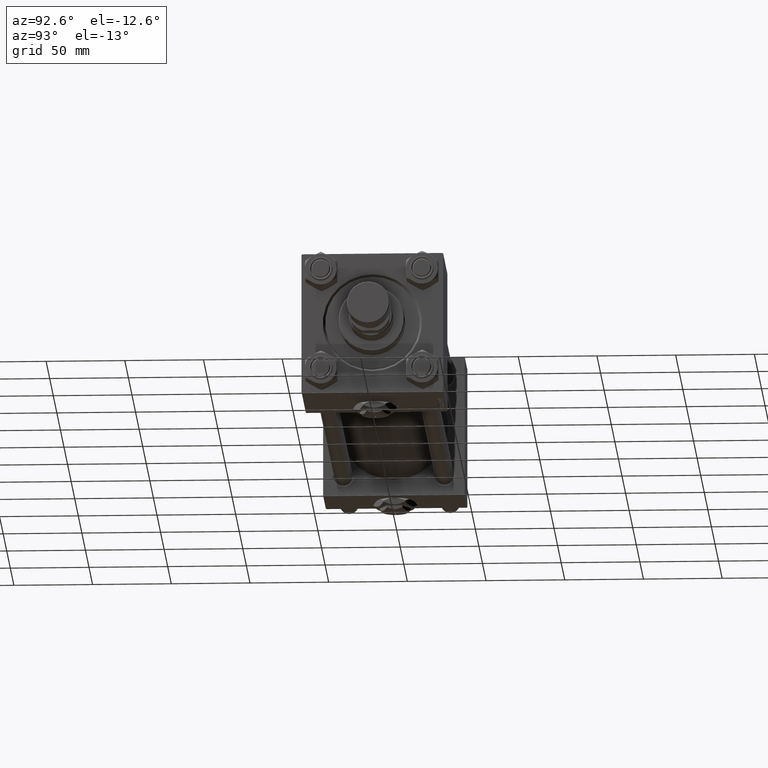
[diagram: clean part render]
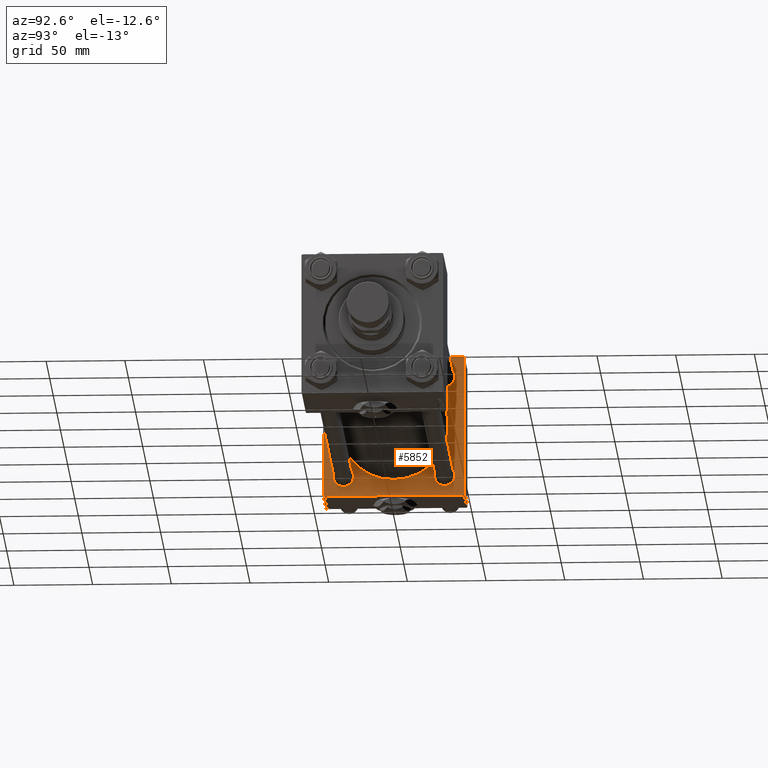
[diagram: same view with one face highlighted and labeled with its STEP entity id]
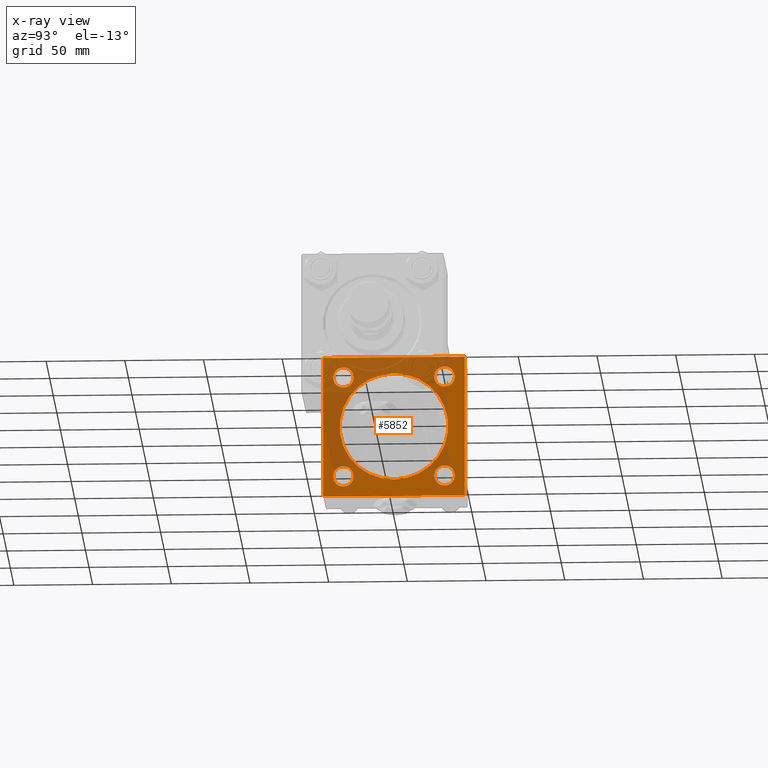
[diagram: x-ray of the same camera — body ghosted, the highlighted face saturated]
A machine part, auxiliary view. The second image highlights one B-rep face of the part: STEP entity #5852.
The next image is the same camera in x-ray: the body ghosted, the highlighted face saturated — about 48% of this face is hidden behind the body in this view.
In plain terms, the highlighted planar face has unit normal (-1, 0, 0).
Its self-contained STEP definition (entity closure, byte-faithful):
#509 = VERTEX_POINT ( 'NONE', #14607 ) ;
#613 = ORIENTED_EDGE ( 'NONE', *, *, #36915, .T. ) ;
#1007 = LINE ( 'NONE', #36975, #21688 ) ;
#1140 = EDGE_CURVE ( 'NONE', #42659, #11289, #39067, .T. ) ;
#1174 = DIRECTION ( 'NONE',  ( -1.000000000000000000, 0.000000000000000000, -0.000000000000000000 ) ) ;
#2552 = AXIS2_PLACEMENT_3D ( 'NONE', #6304, #43576, #35633 ) ;
#2591 = DIRECTION ( 'NONE',  ( -0.000000000000000000, 0.000000000000000000, 1.000000000000000000 ) ) ;
#2696 = LINE ( 'NONE', #23060, #42411 ) ;
#2720 = CIRCLE ( 'NONE', #45776, 6.499999999999950262 ) ;
#3646 = DIRECTION ( 'NONE',  ( 1.000000000000000000, -0.000000000000000000, 0.000000000000000000 ) ) ;
#3846 = ORIENTED_EDGE ( 'NONE', *, *, #24322, .T. ) ;
#3848 = ORIENTED_EDGE ( 'NONE', *, *, #14272, .T. ) ;
#4080 = EDGE_LOOP ( 'NONE', ( #46389, #52222, #13908, #3846, #613, #14825, #33710, #47605 ) ) ;
#5096 = DIRECTION ( 'NONE',  ( -1.000000000000000000, 0.000000000000000000, -0.000000000000000000 ) ) ;
#5213 = LINE ( 'NONE', #21094, #47680 ) ;
#5630 = CARTESIAN_POINT ( 'NONE',  ( 37.00000000000000000, -44.49999999999995737, -45.00000000000000000 ) ) ;
#5852 = ADVANCED_FACE ( 'NONE', ( #34337, #35370, #14747, #51268, #50734, #38793 ), #11039, .F. ) ;
#5905 = DIRECTION ( 'NONE',  ( 1.000000000000000000, -0.000000000000000000, 0.000000000000000000 ) ) ;
#6041 = ORIENTED_EDGE ( 'NONE', *, *, #31951, .T. ) ;
#6304 = CARTESIAN_POINT ( 'NONE',  ( 37.00000000000000000, -32.14999999999997726, 32.15000000000001279 ) ) ;
#6929 = EDGE_CURVE ( 'NONE', #47904, #33044, #38370, .T. ) ;
#7634 = CIRCLE ( 'NONE', #31274, 6.499999999999950262 ) ;
#7756 = EDGE_CURVE ( 'NONE', #8079, #45257, #5213, .T. ) ;
#7876 = VECTOR ( 'NONE', #22701, 1000.000000000000114 ) ;
#8079 = VERTEX_POINT ( 'NONE', #18097 ) ;
#9187 = LINE ( 'NONE', #41444, #50937 ) ;
#9503 = EDGE_CURVE ( 'NONE', #27950, #509, #10692, .T. ) ;
#9724 = EDGE_LOOP ( 'NONE', ( #44734, #52076 ) ) ;
#10620 = AXIS2_PLACEMENT_3D ( 'NONE', #16520, #16770, #32901 ) ;
#10692 = CIRCLE ( 'NONE', #40245, 6.500000000000061284 ) ;
#11011 = DIRECTION ( 'NONE',  ( 0.000000000000000000, 0.7071067811865474617, -0.7071067811865474617 ) ) ;
#11039 = PLANE ( 'NONE',  #42553 ) ;
#11289 = VERTEX_POINT ( 'NONE', #20212 ) ;
#11483 = CIRCLE ( 'NONE', #18250, 34.49999999999999289 ) ;
#11760 = CARTESIAN_POINT ( 'NONE',  ( 37.00000000000000711, 0.000000000000000000, 0.000000000000000000 ) ) ;
#11797 = VERTEX_POINT ( 'NONE', #41216 ) ;
#12240 = CARTESIAN_POINT ( 'NONE',  ( 37.00000000000000000, 44.49999999999998579, -44.99999999999998579 ) ) ;
#12491 = VERTEX_POINT ( 'NONE', #50553 ) ;
#13730 = EDGE_CURVE ( 'NONE', #509, #27950, #36255, .T. ) ;
#13908 = ORIENTED_EDGE ( 'NONE', *, *, #52029, .F. ) ;
#14185 = EDGE_LOOP ( 'NONE', ( #3848, #19636 ) ) ;
#14272 = EDGE_CURVE ( 'NONE', #38202, #16262, #25350, .T. ) ;
#14607 = CARTESIAN_POINT ( 'NONE',  ( 37.00000000000000000, -32.14999999999997726, -38.65000000000007674 ) ) ;
#14747 = FACE_BOUND ( 'NONE', #14185, .T. ) ;
#14825 = ORIENTED_EDGE ( 'NONE', *, *, #27603, .T. ) ;
#15292 = LINE ( 'NONE', #31437, #29894 ) ;
#15364 = EDGE_CURVE ( 'NONE', #46944, #38961, #7634, .T. ) ;
#15580 = AXIS2_PLACEMENT_3D ( 'NONE', #30307, #22389, #23168 ) ;
#15592 = ORIENTED_EDGE ( 'NONE', *, *, #19299, .F. ) ;
#15835 = EDGE_LOOP ( 'NONE', ( #15592, #30518 ) ) ;
#16262 = VERTEX_POINT ( 'NONE', #17519 ) ;
#16341 = AXIS2_PLACEMENT_3D ( 'NONE', #32905, #1174, #52054 ) ;
#16520 = CARTESIAN_POINT ( 'NONE',  ( 37.00000000000000000, 32.14999999999999147, 32.15000000000000568 ) ) ;
#16770 = DIRECTION ( 'NONE',  ( -1.000000000000000000, 0.000000000000000000, -0.000000000000000000 ) ) ;
#17519 = CARTESIAN_POINT ( 'NONE',  ( 37.00000000000000000, -32.14999999999997726, 38.65000000000007674 ) ) ;
#17911 = DIRECTION ( 'NONE',  ( 0.000000000000000000, -1.000000000000000000, -1.541976423090495633E-16 ) ) ;
#18097 = CARTESIAN_POINT ( 'NONE',  ( 37.00000000000000000, -45.00000000000000711, 44.49999999999997158 ) ) ;
#18250 = AXIS2_PLACEMENT_3D ( 'NONE', #24017, #3646, #31940 ) ;
#19299 = EDGE_CURVE ( 'NONE', #42051, #11797, #27077, .T. ) ;
#19636 = ORIENTED_EDGE ( 'NONE', *, *, #47309, .T. ) ;
#20047 = CARTESIAN_POINT ( 'NONE',  ( 37.00000000000000000, 32.14999999999999147, 32.15000000000000568 ) ) ;
#20212 = CARTESIAN_POINT ( 'NONE',  ( 37.00000000000000000, 44.99999999999998579, -44.49999999999995737 ) ) ;
#20397 = CARTESIAN_POINT ( 'NONE',  ( 37.00000000000000000, -32.14999999999997726, -25.64999999999994884 ) ) ;
#20685 = DIRECTION ( 'NONE',  ( 0.000000000000000000, 0.000000000000000000, 1.000000000000000000 ) ) ;
#21094 = CARTESIAN_POINT ( 'NONE',  ( 37.00000000000000000, -45.00000000000000711, 45.00000000000000000 ) ) ;
#21237 = DIRECTION ( 'NONE',  ( 0.000000000000000000, 0.000000000000000000, 1.000000000000000000 ) ) ;
#21265 = EDGE_CURVE ( 'NONE', #45257, #27664, #45018, .T. ) ;
#21688 = VECTOR ( 'NONE', #40664, 1000.000000000000000 ) ;
#22389 = DIRECTION ( 'NONE',  ( -1.000000000000000000, 0.000000000000000000, -0.000000000000000000 ) ) ;
#22701 = DIRECTION ( 'NONE',  ( -0.000000000000000000, 0.7071067811865474617, 0.7071067811865474617 ) ) ;
#23029 = CARTESIAN_POINT ( 'NONE',  ( 37.00000000000000000, 32.14999999999999147, 38.64999999999995595 ) ) ;
#23060 = CARTESIAN_POINT ( 'NONE',  ( 37.00000000000000000, 44.49999999999998579, 45.00000000000001421 ) ) ;
#23168 = DIRECTION ( 'NONE',  ( 0.000000000000000000, 0.000000000000000000, 1.000000000000000000 ) ) ;
#24017 = CARTESIAN_POINT ( 'NONE',  ( 37.00000000000000711, 0.000000000000000000, 0.000000000000000000 ) ) ;
#24019 = DIRECTION ( 'NONE',  ( -1.000000000000000000, 0.000000000000000000, -0.000000000000000000 ) ) ;
#24322 = EDGE_CURVE ( 'NONE', #46140, #50954, #2696, .T. ) ;
#24555 = AXIS2_PLACEMENT_3D ( 'NONE', #11760, #5905, #49574 ) ;
#24928 = DIRECTION ( 'NONE',  ( 0.000000000000000000, 0.000000000000000000, 1.000000000000000000 ) ) ;
#25350 = CIRCLE ( 'NONE', #2552, 6.500000000000061284 ) ;
#26392 = DIRECTION ( 'NONE',  ( -1.000000000000000000, 0.000000000000000000, -0.000000000000000000 ) ) ;
#26677 = CIRCLE ( 'NONE', #10620, 6.499999999999950262 ) ;
#27077 = CIRCLE ( 'NONE', #24555, 34.49999999999999289 ) ;
#27603 = EDGE_CURVE ( 'NONE', #12491, #8079, #28128, .T. ) ;
#27664 = VERTEX_POINT ( 'NONE', #5630 ) ;
#27950 = VERTEX_POINT ( 'NONE', #20397 ) ;
#28128 = LINE ( 'NONE', #40799, #35797 ) ;
#29894 = VECTOR ( 'NONE', #32478, 1000.000000000000000 ) ;
#30307 = CARTESIAN_POINT ( 'NONE',  ( 37.00000000000000000, 32.14999999999999147, -32.15000000000000568 ) ) ;
#30518 = ORIENTED_EDGE ( 'NONE', *, *, #32860, .F. ) ;
#30621 = ORIENTED_EDGE ( 'NONE', *, *, #9503, .T. ) ;
#30720 = CARTESIAN_POINT ( 'NONE',  ( 37.00000000000000711, 0.000000000000000000, 34.49999999999999289 ) ) ;
#31144 = CARTESIAN_POINT ( 'NONE',  ( 37.00000000000000000, 0.000000000000000000, 0.000000000000000000 ) ) ;
#31180 = EDGE_LOOP ( 'NONE', ( #6041, #44243 ) ) ;
#31274 = AXIS2_PLACEMENT_3D ( 'NONE', #20047, #24019, #36162 ) ;
#31437 = CARTESIAN_POINT ( 'NONE',  ( 37.00000000000000000, 44.99999999999998579, 45.00000000000001421 ) ) ;
#31940 = DIRECTION ( 'NONE',  ( 0.000000000000000000, 0.000000000000000000, 1.000000000000000000 ) ) ;
#31951 = EDGE_CURVE ( 'NONE', #38961, #46944, #26677, .T. ) ;
#32005 = ORIENTED_EDGE ( 'NONE', *, *, #13730, .T. ) ;
#32478 = DIRECTION ( 'NONE',  ( 0.000000000000000000, 0.000000000000000000, -1.000000000000000000 ) ) ;
#32860 = EDGE_CURVE ( 'NONE', #11797, #42051, #11483, .T. ) ;
#32901 = DIRECTION ( 'NONE',  ( 0.000000000000000000, 0.000000000000000000, 1.000000000000000000 ) ) ;
#32905 = CARTESIAN_POINT ( 'NONE',  ( 37.00000000000000000, -32.14999999999997726, 32.15000000000001279 ) ) ;
#33044 = VERTEX_POINT ( 'NONE', #34763 ) ;
#33710 = ORIENTED_EDGE ( 'NONE', *, *, #7756, .T. ) ;
#33869 = VECTOR ( 'NONE', #11011, 1000.000000000000114 ) ;
#34337 = FACE_BOUND ( 'NONE', #51237, .T. ) ;
#34417 = CARTESIAN_POINT ( 'NONE',  ( 37.00000000000000000, 32.14999999999999147, -25.65000000000005542 ) ) ;
#34763 = CARTESIAN_POINT ( 'NONE',  ( 37.00000000000000000, 32.14999999999999147, -38.64999999999995595 ) ) ;
#34853 = CARTESIAN_POINT ( 'NONE',  ( 37.00000000000000000, 44.99999999999998579, -44.49999999999998579 ) ) ;
#35370 = FACE_BOUND ( 'NONE', #9724, .T. ) ;
#35480 = DIRECTION ( 'NONE',  ( 0.000000000000000000, -0.7071067811865474617, 0.7071067811865474617 ) ) ;
#35633 = DIRECTION ( 'NONE',  ( 0.000000000000000000, 0.000000000000000000, 1.000000000000000000 ) ) ;
#35797 = VECTOR ( 'NONE', #51956, 1000.000000000000114 ) ;
#36162 = DIRECTION ( 'NONE',  ( 0.000000000000000000, 0.000000000000000000, 1.000000000000000000 ) ) ;
#36255 = CIRCLE ( 'NONE', #38771, 6.500000000000061284 ) ;
#36539 = CARTESIAN_POINT ( 'NONE',  ( 37.00000000000000000, 44.99999999999998579, 44.50000000000001421 ) ) ;
#36915 = EDGE_CURVE ( 'NONE', #50954, #12491, #1007, .T. ) ;
#36975 = CARTESIAN_POINT ( 'NONE',  ( 37.00000000000000000, 44.99999999999998579, 45.00000000000001421 ) ) ;
#37211 = DIRECTION ( 'NONE',  ( 0.000000000000000000, 7.709882115452476934E-17, -1.000000000000000000 ) ) ;
#37315 = DIRECTION ( 'NONE',  ( -1.000000000000000000, 0.000000000000000000, -0.000000000000000000 ) ) ;
#37324 = DIRECTION ( 'NONE',  ( -1.000000000000000000, 0.000000000000000000, -0.000000000000000000 ) ) ;
#38202 = VERTEX_POINT ( 'NONE', #38473 ) ;
#38370 = CIRCLE ( 'NONE', #15580, 6.499999999999950262 ) ;
#38473 = CARTESIAN_POINT ( 'NONE',  ( 37.00000000000000000, -32.14999999999997726, 25.64999999999994884 ) ) ;
#38771 = AXIS2_PLACEMENT_3D ( 'NONE', #40046, #37315, #20685 ) ;
#38793 = FACE_OUTER_BOUND ( 'NONE', #4080, .T. ) ;
#38961 = VERTEX_POINT ( 'NONE', #42628 ) ;
#39067 = LINE ( 'NONE', #34853, #7876 ) ;
#40046 = CARTESIAN_POINT ( 'NONE',  ( 37.00000000000000000, -32.14999999999997726, -32.15000000000001279 ) ) ;
#40245 = AXIS2_PLACEMENT_3D ( 'NONE', #41062, #5096, #21237 ) ;
#40500 = CARTESIAN_POINT ( 'NONE',  ( 37.00000000000000000, 32.14999999999999147, -32.15000000000000568 ) ) ;
#40664 = DIRECTION ( 'NONE',  ( 0.000000000000000000, -1.000000000000000000, -1.541976423090495387E-16 ) ) ;
#40799 = CARTESIAN_POINT ( 'NONE',  ( 37.00000000000000000, -45.00000000000000711, 44.49999999999997158 ) ) ;
#41062 = CARTESIAN_POINT ( 'NONE',  ( 37.00000000000000000, -32.14999999999997726, -32.15000000000001279 ) ) ;
#41216 = CARTESIAN_POINT ( 'NONE',  ( 37.00000000000000711, 4.225031457058367344E-15, -34.49999999999999289 ) ) ;
#41444 = CARTESIAN_POINT ( 'NONE',  ( 37.00000000000000000, 44.99999999999998579, -44.99999999999998579 ) ) ;
#42051 = VERTEX_POINT ( 'NONE', #30720 ) ;
#42411 = VECTOR ( 'NONE', #35480, 1000.000000000000114 ) ;
#42553 = AXIS2_PLACEMENT_3D ( 'NONE', #31144, #26392, #2591 ) ;
#42628 = CARTESIAN_POINT ( 'NONE',  ( 37.00000000000000000, 32.14999999999999147, 25.65000000000005542 ) ) ;
#42659 = VERTEX_POINT ( 'NONE', #12240 ) ;
#43576 = DIRECTION ( 'NONE',  ( -1.000000000000000000, 0.000000000000000000, -0.000000000000000000 ) ) ;
#44243 = ORIENTED_EDGE ( 'NONE', *, *, #15364, .T. ) ;
#44734 = ORIENTED_EDGE ( 'NONE', *, *, #47674, .T. ) ;
#45018 = LINE ( 'NONE', #52014, #33869 ) ;
#45257 = VERTEX_POINT ( 'NONE', #51582 ) ;
#45776 = AXIS2_PLACEMENT_3D ( 'NONE', #40500, #37324, #24928 ) ;
#46140 = VERTEX_POINT ( 'NONE', #36539 ) ;
#46389 = ORIENTED_EDGE ( 'NONE', *, *, #49799, .F. ) ;
#46739 = CIRCLE ( 'NONE', #16341, 6.500000000000061284 ) ;
#46944 = VERTEX_POINT ( 'NONE', #23029 ) ;
#47195 = CARTESIAN_POINT ( 'NONE',  ( 37.00000000000000000, 44.49999999999998579, 45.00000000000001421 ) ) ;
#47309 = EDGE_CURVE ( 'NONE', #16262, #38202, #46739, .T. ) ;
#47605 = ORIENTED_EDGE ( 'NONE', *, *, #21265, .T. ) ;
#47674 = EDGE_CURVE ( 'NONE', #33044, #47904, #2720, .T. ) ;
#47680 = VECTOR ( 'NONE', #37211, 1000.000000000000000 ) ;
#47904 = VERTEX_POINT ( 'NONE', #34417 ) ;
#49574 = DIRECTION ( 'NONE',  ( 0.000000000000000000, 0.000000000000000000, 1.000000000000000000 ) ) ;
#49799 = EDGE_CURVE ( 'NONE', #42659, #27664, #9187, .T. ) ;
#50553 = CARTESIAN_POINT ( 'NONE',  ( 37.00000000000000000, -44.49999999999995737, 45.00000000000000000 ) ) ;
#50734 = FACE_BOUND ( 'NONE', #15835, .T. ) ;
#50937 = VECTOR ( 'NONE', #17911, 1000.000000000000000 ) ;
#50954 = VERTEX_POINT ( 'NONE', #47195 ) ;
#51237 = EDGE_LOOP ( 'NONE', ( #32005, #30621 ) ) ;
#51268 = FACE_BOUND ( 'NONE', #31180, .T. ) ;
#51582 = CARTESIAN_POINT ( 'NONE',  ( 37.00000000000000000, -45.00000000000000000, -44.49999999999995737 ) ) ;
#51956 = DIRECTION ( 'NONE',  ( -0.000000000000000000, -0.7071067811865425767, -0.7071067811865524577 ) ) ;
#52014 = CARTESIAN_POINT ( 'NONE',  ( 37.00000000000000000, -44.49999999999998579, -45.00000000000000000 ) ) ;
#52029 = EDGE_CURVE ( 'NONE', #46140, #11289, #15292, .T. ) ;
#52054 = DIRECTION ( 'NONE',  ( 0.000000000000000000, 0.000000000000000000, 1.000000000000000000 ) ) ;
#52076 = ORIENTED_EDGE ( 'NONE', *, *, #6929, .T. ) ;
#52222 = ORIENTED_EDGE ( 'NONE', *, *, #1140, .T. ) ;